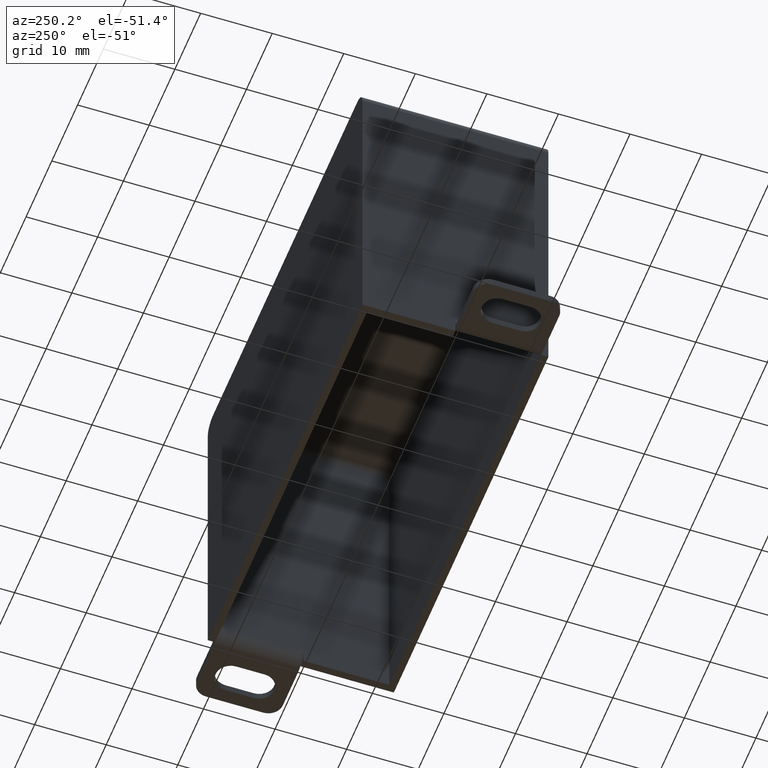
[diagram: clean part render]
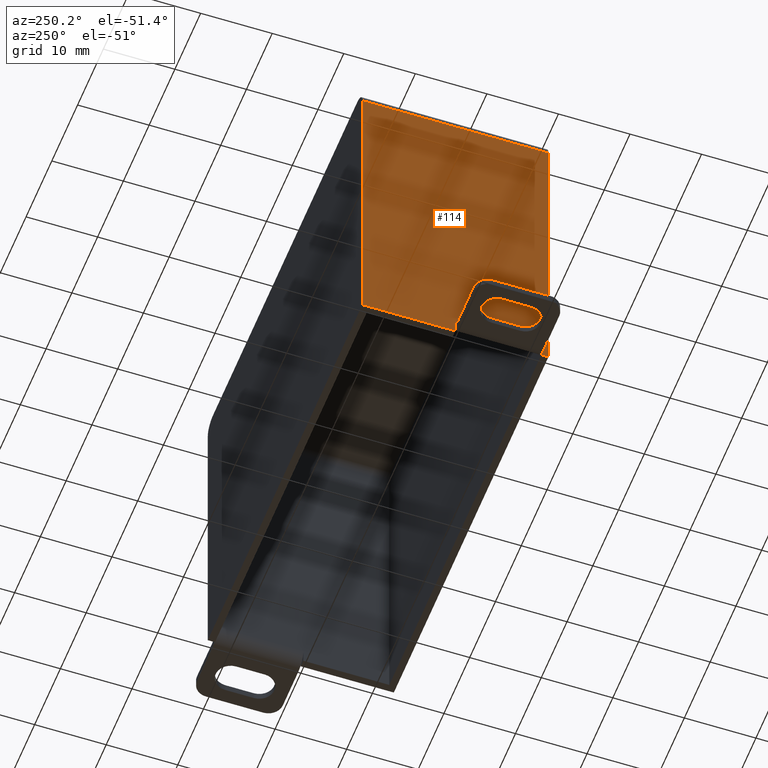
[diagram: same view with one face highlighted and labeled with its STEP entity id]
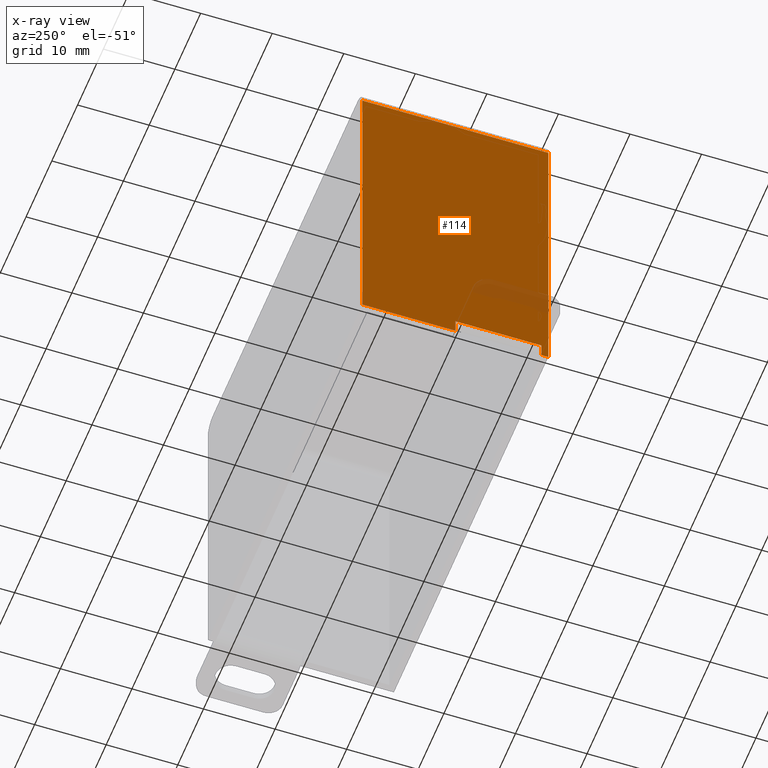
[diagram: x-ray of the same camera — body ghosted, the highlighted face saturated]
A machine part, auxiliary view. The second image highlights one B-rep face of the part: STEP entity #114.
The next image is the same camera in x-ray: the body ghosted, the highlighted face saturated — about 3% of this face is hidden behind the body in this view.
In plain terms, the highlighted planar face has unit normal (-1, 0, 0).
Its self-contained STEP definition (entity closure, byte-faithful):
#114 = ADVANCED_FACE( '', ( #264 ), #265, .T. );
#264 = FACE_OUTER_BOUND( '', #457, .T. );
#265 = PLANE( '', #458 );
#457 = EDGE_LOOP( '', ( #776, #777, #778, #779, #780, #781, #782, #783, #784, #785 ) );
#458 = AXIS2_PLACEMENT_3D( '', #786, #787, #788 );
#776 = ORIENTED_EDGE( '', *, *, #1240, .F. );
#777 = ORIENTED_EDGE( '', *, *, #1241, .T. );
#778 = ORIENTED_EDGE( '', *, *, #1242, .T. );
#779 = ORIENTED_EDGE( '', *, *, #1243, .F. );
#780 = ORIENTED_EDGE( '', *, *, #1157, .F. );
#781 = ORIENTED_EDGE( '', *, *, #1244, .F. );
#782 = ORIENTED_EDGE( '', *, *, #1169, .T. );
#783 = ORIENTED_EDGE( '', *, *, #1164, .T. );
#784 = ORIENTED_EDGE( '', *, *, #1245, .T. );
#785 = ORIENTED_EDGE( '', *, *, #1185, .F. );
#786 = CARTESIAN_POINT( '', ( -30.0000000000000, -13.0000000000000, 45.0000000000000 ) );
#787 = DIRECTION( '', ( -1.00000000000000, 0.000000000000000, 0.000000000000000 ) );
#788 = DIRECTION( '', ( 0.000000000000000, -1.00000000000000, 0.000000000000000 ) );
#1157 = EDGE_CURVE( '', #1366, #1367, #1368, .T. );
#1164 = EDGE_CURVE( '', #1380, #1378, #1381, .T. );
#1169 = EDGE_CURVE( '', #1388, #1380, #1389, .F. );
#1185 = EDGE_CURVE( '', #1414, #1416, #1417, .T. );
#1240 = EDGE_CURVE( '', #1507, #1414, #1508, .T. );
#1241 = EDGE_CURVE( '', #1507, #1509, #1510, .T. );
#1242 = EDGE_CURVE( '', #1509, #1511, #1512, .T. );
#1243 = EDGE_CURVE( '', #1367, #1511, #1513, .T. );
#1244 = EDGE_CURVE( '', #1388, #1366, #1514, .T. );
#1245 = EDGE_CURVE( '', #1378, #1416, #1515, .T. );
#1366 = VERTEX_POINT( '', #1674 );
#1367 = VERTEX_POINT( '', #1675 );
#1368 = LINE( '', #1676, #1677 );
#1378 = VERTEX_POINT( '', #1690 );
#1380 = VERTEX_POINT( '', #1692 );
#1381 = LINE( '', #1693, #1694 );
#1388 = VERTEX_POINT( '', #1703 );
#1389 = LINE( '', #1704, #1705 );
#1414 = VERTEX_POINT( '', #1740 );
#1416 = VERTEX_POINT( '', #1743 );
#1417 = LINE( '', #1744, #1745 );
#1507 = VERTEX_POINT( '', #1870 );
#1508 = LINE( '', #1871, #1872 );
#1509 = VERTEX_POINT( '', #1873 );
#1510 = LINE( '', #1874, #1875 );
#1511 = VERTEX_POINT( '', #1876 );
#1512 = LINE( '', #1877, #1878 );
#1513 = LINE( '', #1879, #1880 );
#1514 = LINE( '', #1881, #1882 );
#1515 = LINE( '', #1883, #1884 );
#1674 = CARTESIAN_POINT( '', ( -30.0000000000000, -1.73472347597681E-015, 0.267949192431126 ) );
#1675 = CARTESIAN_POINT( '', ( -30.0000000000000, -1.73472347597681E-015, 8.67361737988404E-016 ) );
#1676 = CARTESIAN_POINT( '', ( -30.0000000000000, 0.000000000000000, 1.00000000000000 ) );
#1677 = VECTOR( '', #2072, 1000.00000000000 );
#1690 = CARTESIAN_POINT( '', ( -30.0000000000000, -12.0000000000000, 0.267949192431126 ) );
#1692 = CARTESIAN_POINT( '', ( -30.0000000000000, -12.0000000000000, 2.00000000000000 ) );
#1693 = CARTESIAN_POINT( '', ( -30.0000000000000, -12.0000000000000, 1.00000000000000 ) );
#1694 = VECTOR( '', #2082, 1000.00000000000 );
#1703 = CARTESIAN_POINT( '', ( -30.0000000000000, 0.000000000000000, 2.00000000000000 ) );
#1704 = CARTESIAN_POINT( '', ( -30.0000000000000, -12.0000000000000, 2.00000000000000 ) );
#1705 = VECTOR( '', #2088, 1000.00000000000 );
#1740 = CARTESIAN_POINT( '', ( -30.0000000000000, -13.0000000000000, 0.000000000000000 ) );
#1743 = CARTESIAN_POINT( '', ( -30.0000000000000, -12.0000000000000, 8.67361737988404E-016 ) );
#1744 = CARTESIAN_POINT( '', ( -30.0000000000000, -13.0000000000000, 0.000000000000000 ) );
#1745 = VECTOR( '', #2103, 1000.00000000000 );
#1870 = CARTESIAN_POINT( '', ( -30.0000000000000, -13.0000000000000, 43.0000000000000 ) );
#1871 = CARTESIAN_POINT( '', ( -30.0000000000000, -13.0000000000000, 45.0000000000000 ) );
#1872 = VECTOR( '', #2166, 1000.00000000000 );
#1873 = CARTESIAN_POINT( '', ( -30.0000000000000, 13.0000000000000, 43.0000000000000 ) );
#1874 = CARTESIAN_POINT( '', ( -30.0000000000000, 13.0000000000000, 43.0000000000000 ) );
#1875 = VECTOR( '', #2167, 1000.00000000000 );
#1876 = CARTESIAN_POINT( '', ( -30.0000000000000, 13.0000000000000, 0.000000000000000 ) );
#1877 = CARTESIAN_POINT( '', ( -30.0000000000000, 13.0000000000000, 45.0000000000000 ) );
#1878 = VECTOR( '', #2168, 1000.00000000000 );
#1879 = CARTESIAN_POINT( '', ( -30.0000000000000, -13.0000000000000, 0.000000000000000 ) );
#1880 = VECTOR( '', #2169, 1000.00000000000 );
#1881 = CARTESIAN_POINT( '', ( -30.0000000000000, 0.000000000000000, 1.00000000000000 ) );
#1882 = VECTOR( '', #2170, 1000.00000000000 );
#1883 = CARTESIAN_POINT( '', ( -30.0000000000000, -12.0000000000000, 1.00000000000000 ) );
#1884 = VECTOR( '', #2171, 1000.00000000000 );
#2072 = DIRECTION( '', ( 0.000000000000000, -0.000000000000000, -1.00000000000000 ) );
#2082 = DIRECTION( '', ( 0.000000000000000, -0.000000000000000, -1.00000000000000 ) );
#2088 = DIRECTION( '', ( 0.000000000000000, 1.00000000000000, 0.000000000000000 ) );
#2103 = DIRECTION( '', ( 0.000000000000000, 1.00000000000000, 0.000000000000000 ) );
#2166 = DIRECTION( '', ( -0.000000000000000, 0.000000000000000, -1.00000000000000 ) );
#2167 = DIRECTION( '', ( 0.000000000000000, 1.00000000000000, 0.000000000000000 ) );
#2168 = DIRECTION( '', ( -0.000000000000000, 0.000000000000000, -1.00000000000000 ) );
#2169 = DIRECTION( '', ( 0.000000000000000, 1.00000000000000, 0.000000000000000 ) );
#2170 = DIRECTION( '', ( 0.000000000000000, -0.000000000000000, -1.00000000000000 ) );
#2171 = DIRECTION( '', ( 0.000000000000000, -0.000000000000000, -1.00000000000000 ) );